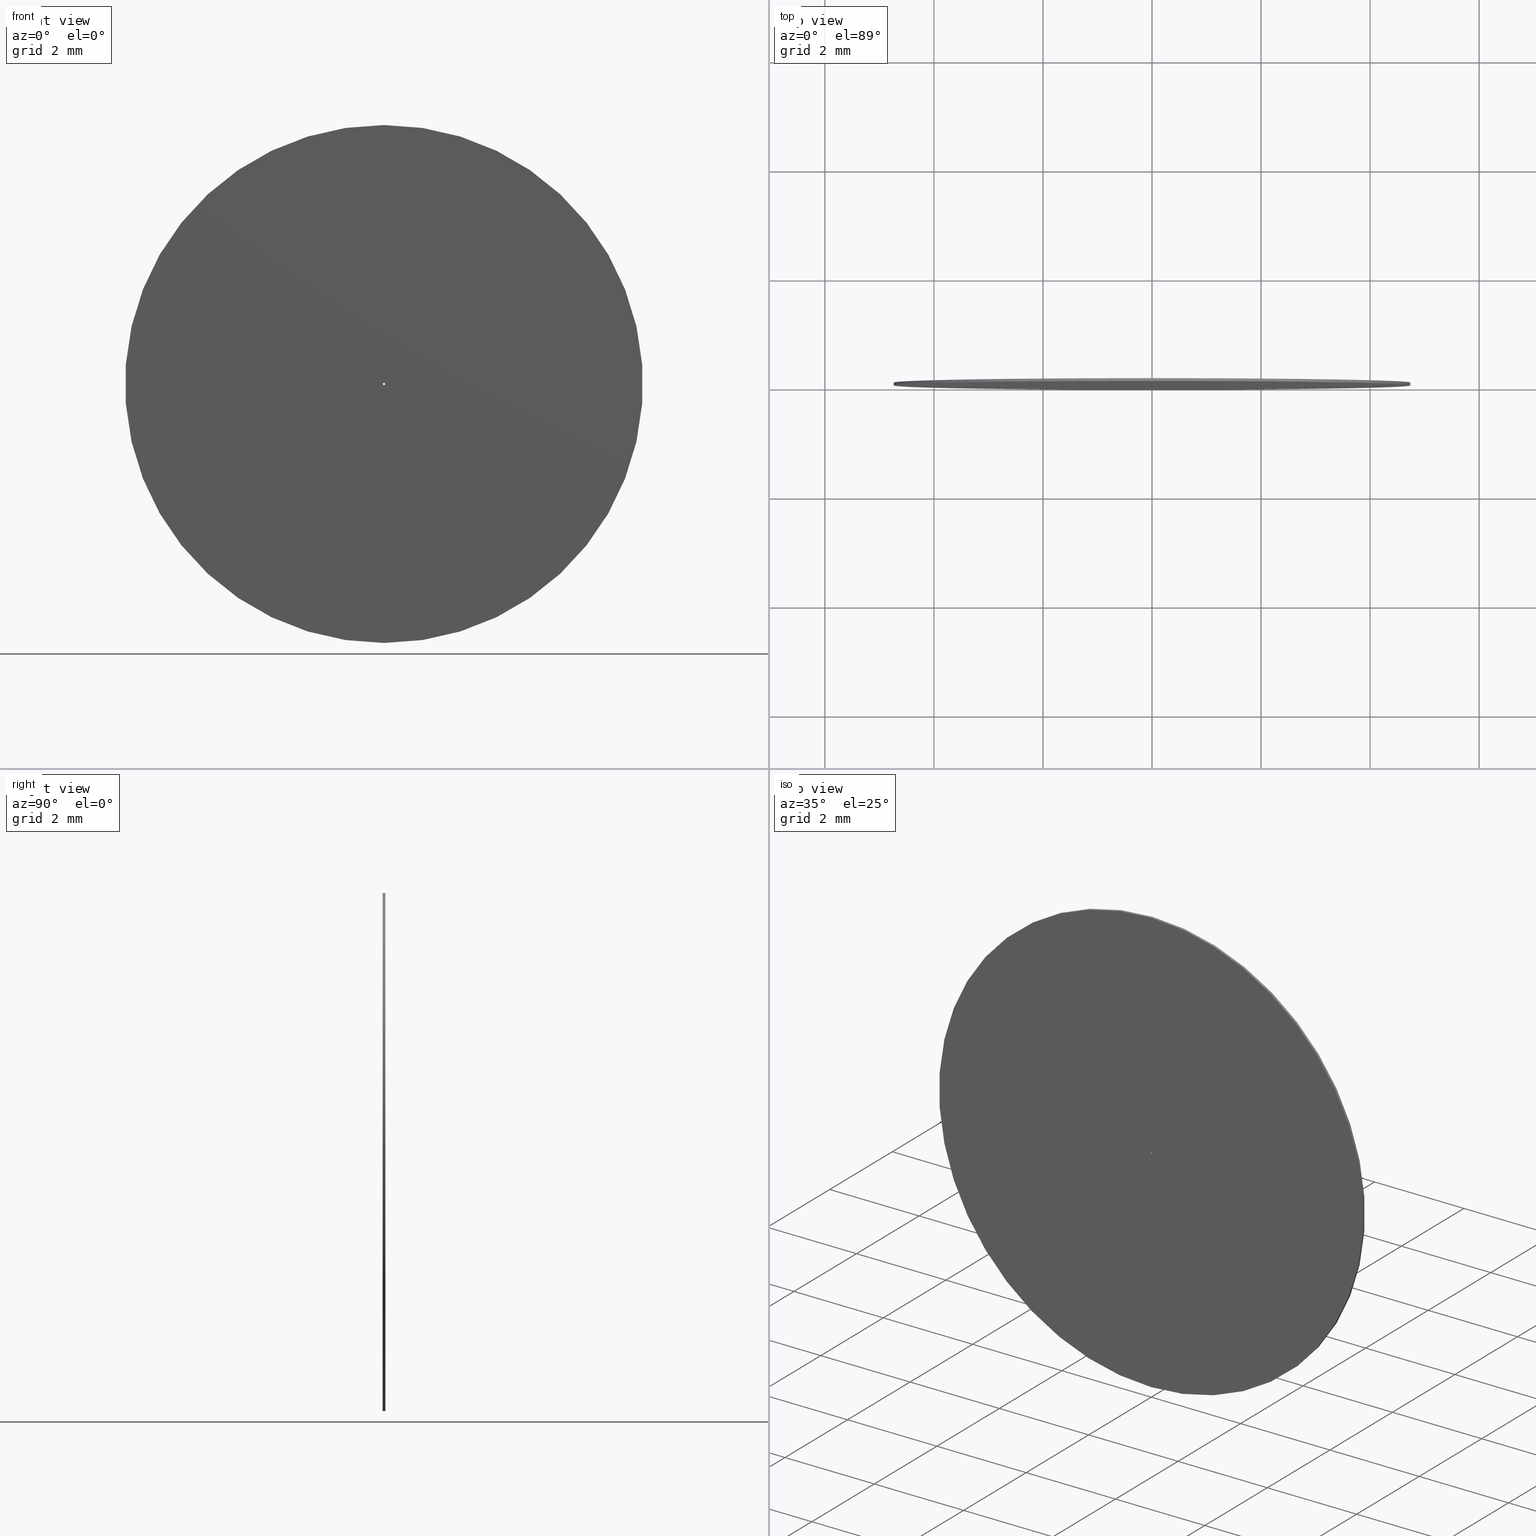
[diagram: canonical four-view strip — front | top / right | iso, engineering-drawing reading convention]
A machine part, canonical four-view strip (front | top / right | iso — engineering-drawing reading convention). The complete STEP part file that produces these views, byte-faithful:
ISO-10303-21;
HEADER;
FILE_DESCRIPTION (( 'STEP AP203' ),
    '1' );
FILE_NAME ('1.5.3.7-ZXO-9.5-40.STEP',
    '2024-05-31T06:06:28',
    ( '' ),
    ( '' ),
    'SwSTEP 2.0',
    'SolidWorks 2021',
    '' );
FILE_SCHEMA (( 'CONFIG_CONTROL_DESIGN' ));
ENDSEC;

DATA;
#1 = PERSON_AND_ORGANIZATION ( #238, #195 ) ;
#2 = EDGE_CURVE ( 'NONE', #246, #30, #226, .T. ) ;
#3 = LINE ( 'NONE', #149, #159 ) ;
#4 = VECTOR ( 'NONE', #14, 1000.000000000000000 ) ;
#5 = PERSON_AND_ORGANIZATION_ROLE ( 'creator' ) ;
#6 = EDGE_LOOP ( 'NONE', ( #68, #79, #67, #165 ) ) ;
#7 = PRODUCT ( '1.5.3.7-ZXO-9.5-40', '1.5.3.7-ZXO-9.5-40', '', ( #134 ) ) ;
#8 = EDGE_LOOP ( 'NONE', ( #87, #66, #11, #213 ) ) ;
#9 = EDGE_LOOP ( 'NONE', ( #144, #121, #28, #69 ) ) ;
#10 = CC_DESIGN_PERSON_AND_ORGANIZATION_ASSIGNMENT ( #100, #80, ( #234 ) ) ;
#11 = ORIENTED_EDGE ( 'NONE', *, *, #2, .T. ) ;
#12 = CIRCLE ( 'NONE', #153, 4.750000000000000000 ) ;
#13 = VERTEX_POINT ( 'NONE', #147 ) ;
#14 = DIRECTION ( 'NONE',  ( -0.000000000000000000, -1.000000000000000000, -0.000000000000000000 ) ) ;
#15 = DESIGN_CONTEXT ( 'detailed design', #191, 'design' ) ;
#16 = EDGE_LOOP ( 'NONE', ( #146, #140 ) ) ;
#17 = CLOSED_SHELL ( 'NONE', ( #123, #39, #75, #126, #62, #160 ) ) ;
#18 = ORIENTED_EDGE ( 'NONE', *, *, #239, .F. ) ;
#19 = DIRECTION ( 'NONE',  ( 0.000000000000000000, -0.000000000000000000, 1.000000000000000000 ) ) ;
#20 = EDGE_CURVE ( 'NONE', #247, #211, #200, .T. ) ;
#21 = PERSON_AND_ORGANIZATION_ROLE ( 'design_owner' ) ;
#22 = VECTOR ( 'NONE', #31, 1000.000000000000000 ) ;
#23 = CARTESIAN_POINT ( 'NONE',  ( 0.000000000000000000, 0.05000000000000000278, 0.000000000000000000 ) ) ;
#24 = PERSON_AND_ORGANIZATION ( #238, #195 ) ;
#25 = FACE_OUTER_BOUND ( 'NONE', #164, .T. ) ;
#26 = EDGE_CURVE ( 'NONE', #211, #247, #65, .T. ) ;
#27 = APPROVAL_STATUS ( 'not_yet_approved' ) ;
#28 = ORIENTED_EDGE ( 'NONE', *, *, #119, .T. ) ;
#29 = COORDINATED_UNIVERSAL_TIME_OFFSET ( 8, 0, .AHEAD. ) ;
#30 = VERTEX_POINT ( 'NONE', #103 ) ;
#31 = DIRECTION ( 'NONE',  ( -0.000000000000000000, -1.000000000000000000, -0.000000000000000000 ) ) ;
#32 = EDGE_CURVE ( 'NONE', #246, #81, #236, .T. ) ;
#33 = CARTESIAN_POINT ( 'NONE',  ( 0.000000000000000000, 0.000000000000000000, 0.000000000000000000 ) ) ;
#34 = AXIS2_PLACEMENT_3D ( 'NONE', #152, #76, #19 ) ;
#35 = CARTESIAN_POINT ( 'NONE',  ( 0.000000000000000000, 0.05000000000000000278, -0.02000000000000000042 ) ) ;
#36 = DIRECTION ( 'NONE',  ( 0.000000000000000000, 0.000000000000000000, -1.000000000000000000 ) ) ;
#37 = APPROVAL ( #151, 'δָ��' ) ;
#38 = DIRECTION ( 'NONE',  ( 0.000000000000000000, 0.000000000000000000, 1.000000000000000000 ) ) ;
#39 = ADVANCED_FACE ( 'NONE', ( #70 ), #130, .T. ) ;
#40 = CARTESIAN_POINT ( 'NONE',  ( 5.817072295949927426E-16, 0.000000000000000000, 4.750000000000000000 ) ) ;
#41 = CARTESIAN_POINT ( 'NONE',  ( 2.449293598294706384E-18, 0.000000000000000000, 0.02000000000000000042 ) ) ;
#42 = AXIS2_PLACEMENT_3D ( 'NONE', #173, #136, #196 ) ;
#43 = CARTESIAN_POINT ( 'NONE',  ( 0.000000000000000000, 0.000000000000000000, 0.000000000000000000 ) ) ;
#44 = EDGE_CURVE ( 'NONE', #30, #166, #57, .T. ) ;
#45 = COORDINATED_UNIVERSAL_TIME_OFFSET ( 8, 0, .AHEAD. ) ;
#46 = LOCAL_TIME ( 14, 6, 28.00000000000000000, #29 ) ;
#47 = DATE_AND_TIME ( #203, #172 ) ;
#48 = DATE_TIME_ROLE ( 'classification_date' ) ;
#49 = LOCAL_TIME ( 14, 6, 28.00000000000000000, #97 ) ;
#50 = VERTEX_POINT ( 'NONE', #35 ) ;
#51 = CC_DESIGN_DATE_AND_TIME_ASSIGNMENT ( #47, #48, ( #61 ) ) ;
#52 = DIRECTION ( 'NONE',  ( -0.000000000000000000, -1.000000000000000000, -0.000000000000000000 ) ) ;
#53 = DIRECTION ( 'NONE',  ( 0.000000000000000000, 0.000000000000000000, 1.000000000000000000 ) ) ;
#54 = DIRECTION ( 'NONE',  ( -0.000000000000000000, -1.000000000000000000, -0.000000000000000000 ) ) ;
#55 = CARTESIAN_POINT ( 'NONE',  ( 0.000000000000000000, 0.05000000000000000278, -0.02000000000000000042 ) ) ;
#56 =( NAMED_UNIT ( * ) SI_UNIT ( $, .STERADIAN. ) SOLID_ANGLE_UNIT ( ) );
#57 = CIRCLE ( 'NONE', #209, 4.750000000000000000 ) ;
#58 = APPLICATION_PROTOCOL_DEFINITION ( 'international standard', 'config_control_design', 1994, #170 ) ;
#59 = CYLINDRICAL_SURFACE ( 'NONE', #167, 0.02000000000000000042 ) ;
#60 = DIRECTION ( 'NONE',  ( -0.000000000000000000, -1.000000000000000000, -0.000000000000000000 ) ) ;
#61 = SECURITY_CLASSIFICATION ( '', '', #205 ) ;
#62 = ADVANCED_FACE ( 'NONE', ( #106 ), #188, .T. ) ;
#63 = DATE_AND_TIME ( #85, #184 ) ;
#64 = AXIS2_PLACEMENT_3D ( 'NONE', #23, #92, #197 ) ;
#65 = CIRCLE ( 'NONE', #228, 0.02000000000000000042 ) ;
#66 = ORIENTED_EDGE ( 'NONE', *, *, #32, .F. ) ;
#67 = ORIENTED_EDGE ( 'NONE', *, *, #26, .F. ) ;
#68 = ORIENTED_EDGE ( 'NONE', *, *, #154, .T. ) ;
#69 = ORIENTED_EDGE ( 'NONE', *, *, #20, .F. ) ;
#70 = FACE_OUTER_BOUND ( 'NONE', #240, .T. ) ;
#71 = DIRECTION ( 'NONE',  ( 0.000000000000000000, 0.000000000000000000, -1.000000000000000000 ) ) ;
#72 = EDGE_CURVE ( 'NONE', #81, #166, #148, .T. ) ;
#73 = CC_DESIGN_APPROVAL ( #84, ( #61 ) ) ;
#74 =( NAMED_UNIT ( * ) PLANE_ANGLE_UNIT ( ) SI_UNIT ( $, .RADIAN. ) );
#75 = ADVANCED_FACE ( 'NONE', ( #91, #89 ), #169, .T. ) ;
#76 = DIRECTION ( 'NONE',  ( 0.000000000000000000, 1.000000000000000000, 0.000000000000000000 ) ) ;
#77 = PRODUCT_DEFINITION_FORMATION_WITH_SPECIFIED_SOURCE ( '�κ�', '', #7, .NOT_KNOWN. ) ;
#78 = PERSON_AND_ORGANIZATION ( #238, #195 ) ;
#79 = ORIENTED_EDGE ( 'NONE', *, *, #176, .T. ) ;
#80 = PERSON_AND_ORGANIZATION_ROLE ( 'creator' ) ;
#81 = VERTEX_POINT ( 'NONE', #212 ) ;
#82 = LOCAL_TIME ( 14, 6, 28.00000000000000000, #185 ) ;
#83 = DATE_AND_TIME ( #139, #49 ) ;
#84 = APPROVAL ( #27, 'δָ��' ) ;
#85 = CALENDAR_DATE ( 2024, 31, 5 ) ;
#86 = AXIS2_PLACEMENT_3D ( 'NONE', #248, #54, #230 ) ;
#87 = ORIENTED_EDGE ( 'NONE', *, *, #72, .F. ) ;
#88 = CARTESIAN_POINT ( 'NONE',  ( 0.000000000000000000, 0.000000000000000000, 0.000000000000000000 ) ) ;
#89 = FACE_BOUND ( 'NONE', #183, .T. ) ;
#90 = EDGE_LOOP ( 'NONE', ( #181, #99 ) ) ;
#91 = FACE_OUTER_BOUND ( 'NONE', #90, .T. ) ;
#92 = DIRECTION ( 'NONE',  ( 0.000000000000000000, 1.000000000000000000, 0.000000000000000000 ) ) ;
#93 = CARTESIAN_POINT ( 'NONE',  ( 0.000000000000000000, 0.000000000000000000, -0.02000000000000000042 ) ) ;
#94 = DIRECTION ( 'NONE',  ( 0.000000000000000000, 0.000000000000000000, 1.000000000000000000 ) ) ;
#95 = DIRECTION ( 'NONE',  ( 0.000000000000000000, 1.000000000000000000, 0.000000000000000000 ) ) ;
#96 = VECTOR ( 'NONE', #52, 1000.000000000000000 ) ;
#97 = COORDINATED_UNIVERSAL_TIME_OFFSET ( 8, 0, .AHEAD. ) ;
#98 = APPROVAL_DATE_TIME ( #63, #37 ) ;
#99 = ORIENTED_EDGE ( 'NONE', *, *, #210, .T. ) ;
#100 = PERSON_AND_ORGANIZATION ( #238, #195 ) ;
#101 = APPROVAL_PERSON_ORGANIZATION ( #206, #245, #180 ) ;
#102 = DATE_AND_TIME ( #143, #82 ) ;
#103 = CARTESIAN_POINT ( 'NONE',  ( 0.000000000000000000, 0.000000000000000000, -4.750000000000000000 ) ) ;
#104 = AXIS2_PLACEMENT_3D ( 'NONE', #125, #131, #231 ) ;
#105 = ORIENTED_EDGE ( 'NONE', *, *, #154, .F. ) ;
#106 = FACE_OUTER_BOUND ( 'NONE', #8, .T. ) ;
#107 = UNCERTAINTY_MEASURE_WITH_UNIT (LENGTH_MEASURE( 1.000000000000000082E-05 ), #235, 'distance_accuracy_value', 'NONE');
#108 = FACE_OUTER_BOUND ( 'NONE', #6, .T. ) ;
#109 = CARTESIAN_POINT ( 'NONE',  ( 0.000000000000000000, 0.05000000000000000278, -4.750000000000000000 ) ) ;
#110 = CC_DESIGN_APPROVAL ( #245, ( #77 ) ) ;
#111 = CC_DESIGN_DATE_AND_TIME_ASSIGNMENT ( #83, #142, ( #234 ) ) ;
#112 = FACE_OUTER_BOUND ( 'NONE', #9, .T. ) ;
#113 = CARTESIAN_POINT ( 'NONE',  ( 0.000000000000000000, 0.05000000000000000278, 0.000000000000000000 ) ) ;
#114 = CC_DESIGN_PERSON_AND_ORGANIZATION_ASSIGNMENT ( #24, #21, ( #7 ) ) ;
#115 = CIRCLE ( 'NONE', #64, 0.02000000000000000042 ) ;
#116 = DIRECTION ( 'NONE',  ( -0.000000000000000000, -1.000000000000000000, -0.000000000000000000 ) ) ;
#117 = DIRECTION ( 'NONE',  ( 0.000000000000000000, 0.000000000000000000, 1.000000000000000000 ) ) ;
#118 =( GEOMETRIC_REPRESENTATION_CONTEXT ( 3 ) GLOBAL_UNCERTAINTY_ASSIGNED_CONTEXT ( ( #107 ) ) GLOBAL_UNIT_ASSIGNED_CONTEXT ( ( #235, #74, #56 ) ) REPRESENTATION_CONTEXT ( 'NONE', 'WORKASPACE' ) );
#119 = EDGE_CURVE ( 'NONE', #50, #211, #207, .T. ) ;
#120 = SHAPE_DEFINITION_REPRESENTATION ( #141, #204 ) ;
#121 = ORIENTED_EDGE ( 'NONE', *, *, #163, .T. ) ;
#122 = APPROVAL_DATE_TIME ( #156, #84 ) ;
#123 = ADVANCED_FACE ( 'NONE', ( #108 ), #155, .F. ) ;
#124 = ORIENTED_EDGE ( 'NONE', *, *, #72, .T. ) ;
#125 = CARTESIAN_POINT ( 'NONE',  ( 0.000000000000000000, 0.05000000000000000278, 0.000000000000000000 ) ) ;
#126 = ADVANCED_FACE ( 'NONE', ( #25, #171 ), #175, .F. ) ;
#127 = CARTESIAN_POINT ( 'NONE',  ( 0.000000000000000000, 0.05000000000000000278, 0.000000000000000000 ) ) ;
#128 = MANIFOLD_SOLID_BREP ( '͹̨-����1', #17 ) ;
#129 = DIRECTION ( 'NONE',  ( 0.000000000000000000, 0.000000000000000000, 1.000000000000000000 ) ) ;
#130 = CYLINDRICAL_SURFACE ( 'NONE', #220, 4.750000000000000000 ) ;
#131 = DIRECTION ( 'NONE',  ( 0.000000000000000000, 1.000000000000000000, 0.000000000000000000 ) ) ;
#132 = CC_DESIGN_PERSON_AND_ORGANIZATION_ASSIGNMENT ( #199, #5, ( #77 ) ) ;
#133 = CIRCLE ( 'NONE', #217, 4.750000000000000000 ) ;
#134 = MECHANICAL_CONTEXT ( 'NONE', #170, 'mechanical' ) ;
#135 = DIRECTION ( 'NONE',  ( 0.000000000000000000, 1.000000000000000000, 0.000000000000000000 ) ) ;
#136 = DIRECTION ( 'NONE',  ( -0.000000000000000000, -1.000000000000000000, -0.000000000000000000 ) ) ;
#137 = AXIS2_PLACEMENT_3D ( 'NONE', #43, #117, #232 ) ;
#138 = CARTESIAN_POINT ( 'NONE',  ( 0.000000000000000000, 0.05000000000000000278, 0.000000000000000000 ) ) ;
#139 = CALENDAR_DATE ( 2024, 31, 5 ) ;
#140 = ORIENTED_EDGE ( 'NONE', *, *, #20, .T. ) ;
#141 = PRODUCT_DEFINITION_SHAPE ( 'NONE', 'NONE',  #234 ) ;
#142 = DATE_TIME_ROLE ( 'creation_date' ) ;
#143 = CALENDAR_DATE ( 2024, 31, 5 ) ;
#144 = ORIENTED_EDGE ( 'NONE', *, *, #176, .F. ) ;
#145 = DIRECTION ( 'NONE',  ( 0.000000000000000000, 0.000000000000000000, 1.000000000000000000 ) ) ;
#146 = ORIENTED_EDGE ( 'NONE', *, *, #26, .T. ) ;
#147 = CARTESIAN_POINT ( 'NONE',  ( 2.449293598294706384E-18, 0.05000000000000000278, 0.02000000000000000042 ) ) ;
#148 = LINE ( 'NONE', #168, #4 ) ;
#149 = CARTESIAN_POINT ( 'NONE',  ( 2.449293598294706384E-18, 0.05000000000000000278, 0.02000000000000000042 ) ) ;
#150 = APPROVAL_PERSON_ORGANIZATION ( #1, #37, #233 ) ;
#151 = APPROVAL_STATUS ( 'not_yet_approved' ) ;
#152 = CARTESIAN_POINT ( 'NONE',  ( 0.000000000000000000, 0.000000000000000000, 0.000000000000000000 ) ) ;
#153 = AXIS2_PLACEMENT_3D ( 'NONE', #113, #95, #94 ) ;
#154 = EDGE_CURVE ( 'NONE', #50, #13, #178, .T. ) ;
#155 = CYLINDRICAL_SURFACE ( 'NONE', #42, 0.02000000000000000042 ) ;
#156 = DATE_AND_TIME ( #158, #46 ) ;
#157 = ORIENTED_EDGE ( 'NONE', *, *, #239, .T. ) ;
#158 = CALENDAR_DATE ( 2024, 31, 5 ) ;
#159 = VECTOR ( 'NONE', #60, 1000.000000000000000 ) ;
#160 = ADVANCED_FACE ( 'NONE', ( #112 ), #59, .F. ) ;
#161 = PERSON_AND_ORGANIZATION ( #238, #195 ) ;
#162 = AXIS2_PLACEMENT_3D ( 'NONE', #33, #192, #145 ) ;
#163 = EDGE_CURVE ( 'NONE', #13, #50, #115, .T. ) ;
#164 = EDGE_LOOP ( 'NONE', ( #224, #18 ) ) ;
#165 = ORIENTED_EDGE ( 'NONE', *, *, #119, .F. ) ;
#166 = VERTEX_POINT ( 'NONE', #40 ) ;
#167 = AXIS2_PLACEMENT_3D ( 'NONE', #138, #116, #71 ) ;
#168 = CARTESIAN_POINT ( 'NONE',  ( 5.817072295949927426E-16, 0.05000000000000000278, 4.750000000000000000 ) ) ;
#169 = PLANE ( 'NONE',  #104 ) ;
#170 = APPLICATION_CONTEXT ( 'configuration controlled 3d designs of mechanical parts and assemblies' ) ;
#171 = FACE_BOUND ( 'NONE', #16, .T. ) ;
#172 = LOCAL_TIME ( 14, 6, 28.00000000000000000, #222 ) ;
#173 = CARTESIAN_POINT ( 'NONE',  ( 0.000000000000000000, 0.05000000000000000278, 0.000000000000000000 ) ) ;
#174 = DIRECTION ( 'NONE',  ( 0.000000000000000000, 0.000000000000000000, 1.000000000000000000 ) ) ;
#175 = PLANE ( 'NONE',  #34 ) ;
#176 = EDGE_CURVE ( 'NONE', #13, #247, #3, .T. ) ;
#177 = DIRECTION ( 'NONE',  ( 0.000000000000000000, 0.000000000000000000, 1.000000000000000000 ) ) ;
#178 = CIRCLE ( 'NONE', #225, 0.02000000000000000042 ) ;
#179 = PERSON_AND_ORGANIZATION ( #238, #195 ) ;
#180 = APPROVAL_ROLE ( '' ) ;
#181 = ORIENTED_EDGE ( 'NONE', *, *, #32, .T. ) ;
#182 = APPROVAL_STATUS ( 'not_yet_approved' ) ;
#183 = EDGE_LOOP ( 'NONE', ( #105, #202 ) ) ;
#184 = LOCAL_TIME ( 14, 6, 28.00000000000000000, #45 ) ;
#185 = COORDINATED_UNIVERSAL_TIME_OFFSET ( 8, 0, .AHEAD. ) ;
#186 = ORIENTED_EDGE ( 'NONE', *, *, #2, .F. ) ;
#187 = CARTESIAN_POINT ( 'NONE',  ( 0.000000000000000000, 0.05000000000000000278, 0.000000000000000000 ) ) ;
#188 = CYLINDRICAL_SURFACE ( 'NONE', #86, 4.750000000000000000 ) ;
#189 = ORIENTED_EDGE ( 'NONE', *, *, #210, .F. ) ;
#190 = CC_DESIGN_APPROVAL ( #37, ( #234 ) ) ;
#191 = APPLICATION_CONTEXT ( 'configuration controlled 3d designs of mechanical parts and assemblies' ) ;
#192 = DIRECTION ( 'NONE',  ( 0.000000000000000000, 1.000000000000000000, 0.000000000000000000 ) ) ;
#193 = CC_DESIGN_PERSON_AND_ORGANIZATION_ASSIGNMENT ( #179, #241, ( #61 ) ) ;
#194 = CARTESIAN_POINT ( 'NONE',  ( 0.000000000000000000, 0.05000000000000000278, 0.000000000000000000 ) ) ;
#195 = ORGANIZATION ( 'δָ��', 'δָ��', '' ) ;
#196 = DIRECTION ( 'NONE',  ( 0.000000000000000000, 0.000000000000000000, -1.000000000000000000 ) ) ;
#197 = DIRECTION ( 'NONE',  ( 0.000000000000000000, 0.000000000000000000, 1.000000000000000000 ) ) ;
#198 = DIRECTION ( 'NONE',  ( 0.000000000000000000, 1.000000000000000000, 0.000000000000000000 ) ) ;
#199 = PERSON_AND_ORGANIZATION ( #238, #195 ) ;
#200 = CIRCLE ( 'NONE', #162, 0.02000000000000000042 ) ;
#201 = APPROVAL_ROLE ( '' ) ;
#202 = ORIENTED_EDGE ( 'NONE', *, *, #163, .F. ) ;
#203 = CALENDAR_DATE ( 2024, 31, 5 ) ;
#204 = ADVANCED_BREP_SHAPE_REPRESENTATION ( '1.5.3.7-ZXO-9.5-40', ( #128, #137 ), #118 ) ;
#205 = SECURITY_CLASSIFICATION_LEVEL ( 'unclassified' ) ;
#206 = PERSON_AND_ORGANIZATION ( #238, #195 ) ;
#207 = LINE ( 'NONE', #55, #22 ) ;
#208 = DIRECTION ( 'NONE',  ( 0.000000000000000000, 1.000000000000000000, 0.000000000000000000 ) ) ;
#209 = AXIS2_PLACEMENT_3D ( 'NONE', #88, #244, #53 ) ;
#210 = EDGE_CURVE ( 'NONE', #81, #246, #12, .T. ) ;
#211 = VERTEX_POINT ( 'NONE', #93 ) ;
#212 = CARTESIAN_POINT ( 'NONE',  ( 5.817072295949927426E-16, 0.05000000000000000278, 4.750000000000000000 ) ) ;
#213 = ORIENTED_EDGE ( 'NONE', *, *, #44, .T. ) ;
#214 = APPROVAL_PERSON_ORGANIZATION ( #78, #84, #201 ) ;
#215 = APPLICATION_PROTOCOL_DEFINITION ( 'international standard', 'config_control_design', 1994, #191 ) ;
#216 = CARTESIAN_POINT ( 'NONE',  ( 0.000000000000000000, 0.05000000000000000278, -4.750000000000000000 ) ) ;
#217 = AXIS2_PLACEMENT_3D ( 'NONE', #237, #135, #177 ) ;
#218 = CC_DESIGN_PERSON_AND_ORGANIZATION_ASSIGNMENT ( #161, #223, ( #77 ) ) ;
#219 = APPROVAL_DATE_TIME ( #102, #245 ) ;
#220 = AXIS2_PLACEMENT_3D ( 'NONE', #187, #229, #36 ) ;
#221 = CC_DESIGN_SECURITY_CLASSIFICATION ( #61, ( #77 ) ) ;
#222 = COORDINATED_UNIVERSAL_TIME_OFFSET ( 8, 0, .AHEAD. ) ;
#223 = PERSON_AND_ORGANIZATION_ROLE ( 'design_supplier' ) ;
#224 = ORIENTED_EDGE ( 'NONE', *, *, #44, .F. ) ;
#225 = AXIS2_PLACEMENT_3D ( 'NONE', #194, #198, #174 ) ;
#226 = LINE ( 'NONE', #109, #96 ) ;
#227 = DIRECTION ( 'NONE',  ( 0.000000000000000000, 1.000000000000000000, 0.000000000000000000 ) ) ;
#228 = AXIS2_PLACEMENT_3D ( 'NONE', #249, #227, #129 ) ;
#229 = DIRECTION ( 'NONE',  ( -0.000000000000000000, -1.000000000000000000, -0.000000000000000000 ) ) ;
#230 = DIRECTION ( 'NONE',  ( 0.000000000000000000, 0.000000000000000000, -1.000000000000000000 ) ) ;
#231 = DIRECTION ( 'NONE',  ( 0.000000000000000000, -0.000000000000000000, 1.000000000000000000 ) ) ;
#232 = DIRECTION ( 'NONE',  ( 1.000000000000000000, 0.000000000000000000, 0.000000000000000000 ) ) ;
#233 = APPROVAL_ROLE ( '' ) ;
#234 = PRODUCT_DEFINITION ( 'δ֪', '', #77, #15 ) ;
#235 =( LENGTH_UNIT ( ) NAMED_UNIT ( * ) SI_UNIT ( .MILLI., .METRE. ) );
#236 = CIRCLE ( 'NONE', #243, 4.750000000000000000 ) ;
#237 = CARTESIAN_POINT ( 'NONE',  ( 0.000000000000000000, 0.000000000000000000, 0.000000000000000000 ) ) ;
#238 = PERSON ( 'δָ��', 'δָ��', 'δָ��', ('δָ��'), ('δָ��'), ('δָ��') ) ;
#239 = EDGE_CURVE ( 'NONE', #166, #30, #133, .T. ) ;
#240 = EDGE_LOOP ( 'NONE', ( #189, #124, #157, #186 ) ) ;
#241 = PERSON_AND_ORGANIZATION_ROLE ( 'classification_officer' ) ;
#242 = PRODUCT_RELATED_PRODUCT_CATEGORY ( 'detail', '', ( #7 ) ) ;
#243 = AXIS2_PLACEMENT_3D ( 'NONE', #127, #208, #38 ) ;
#244 = DIRECTION ( 'NONE',  ( 0.000000000000000000, 1.000000000000000000, 0.000000000000000000 ) ) ;
#245 = APPROVAL ( #182, 'δָ��' ) ;
#246 = VERTEX_POINT ( 'NONE', #216 ) ;
#247 = VERTEX_POINT ( 'NONE', #41 ) ;
#248 = CARTESIAN_POINT ( 'NONE',  ( 0.000000000000000000, 0.05000000000000000278, 0.000000000000000000 ) ) ;
#249 = CARTESIAN_POINT ( 'NONE',  ( 0.000000000000000000, 0.000000000000000000, 0.000000000000000000 ) ) ;
ENDSEC;
END-ISO-10303-21;
